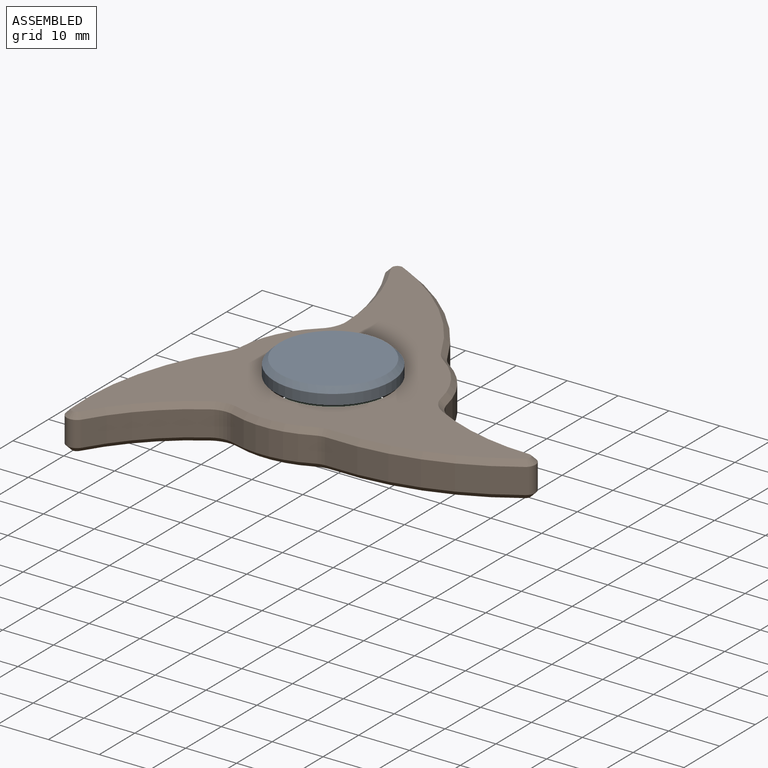
[diagram: assembled view]
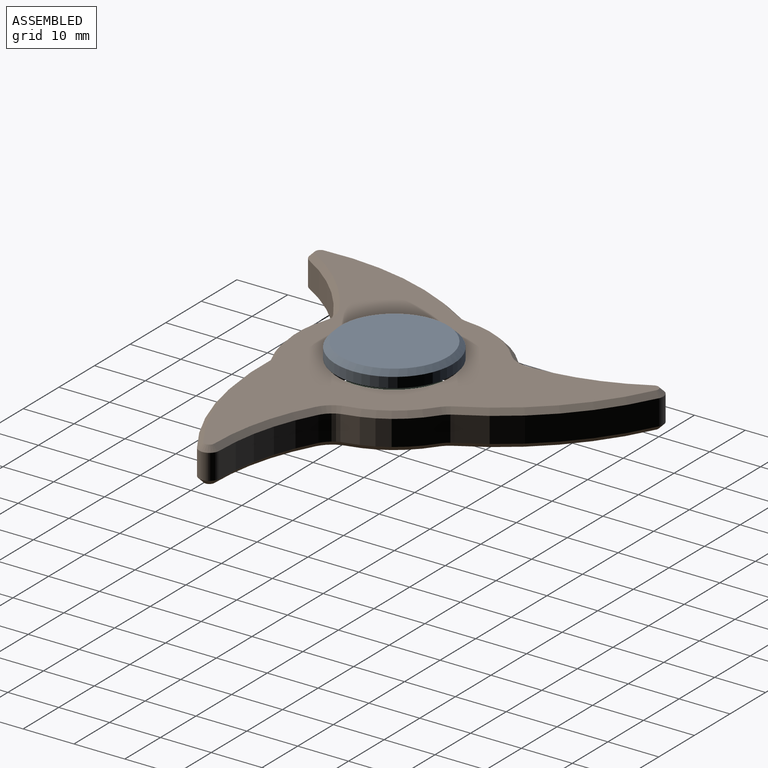
[diagram: assembled view, second angle]
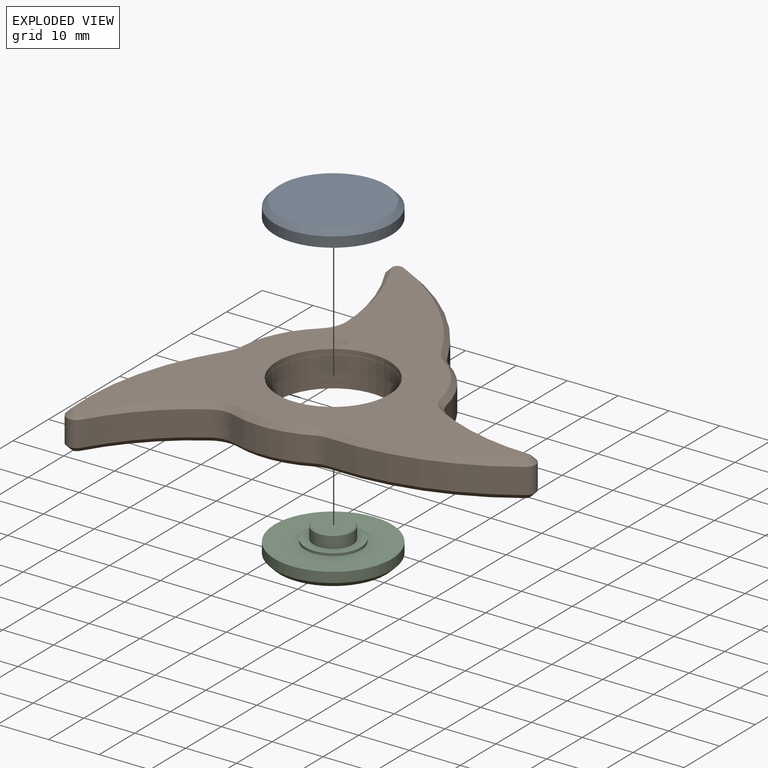
[diagram: exploded view]
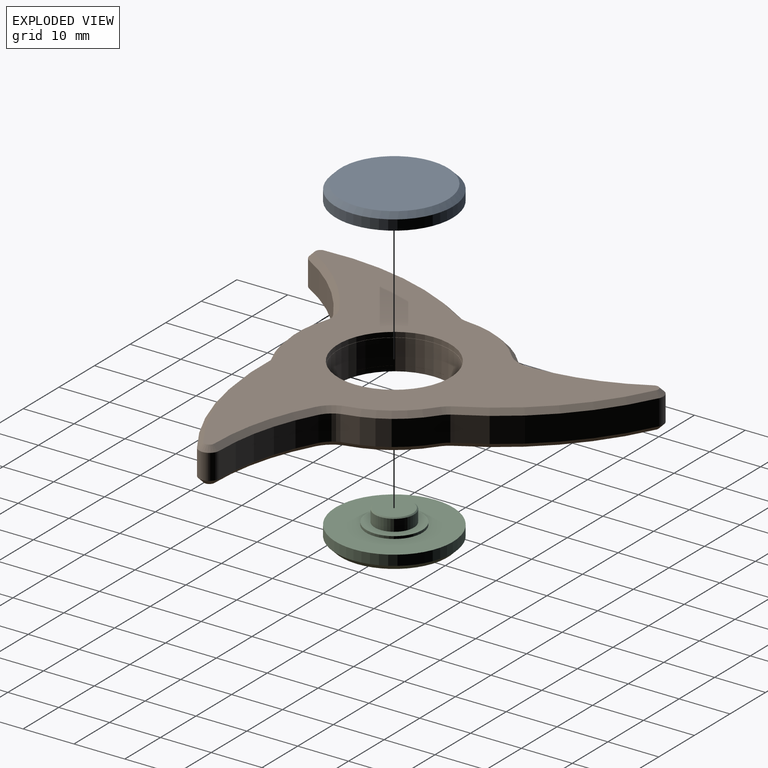
[diagram: exploded view, second angle]
ASSEMBLY  parts=3 mates=2
PART A: 9 faces, bbox 23x23x6 mm
  f0: cylinder r=11.5mm len=23mm, axis (0,0,-1), area 144.5mm2, adj f1,f7
  f1: plane 23x23mm, normal (0,0,1), area 320.4mm2, adj f0,f3
  f2: plane 21x21mm, normal (0,0,-1), area 346.4mm2, adj f7
  f3: cylinder r=5.5mm len=11mm, axis (0,0,-1), area 17.3mm2, adj f1,f4
  f4: plane 11x11mm, normal (0,0,1), area 48.5mm2, adj f3,f6
  f5: plane 7.3x7.3mm, normal (0,0,1), area 41.9mm2, adj f8
  f6: cylinder r=3.85mm len=7.7mm, axis (0,0,-1), area 55.6mm2, adj f4,f8
  f7: cone r=11.5mm half-angle=45deg, axis (0,0,1), area 97.7mm2, adj f0,f2
  f8: cone r=3.65mm half-angle=45deg, axis (0,0,-1), area 6.7mm2, adj f5,f6
PART B: 61 faces, bbox 73.6x77.5x7 mm
  f0: cylinder r=20mm len=12.63mm, axis (0,0,-1), area 77.9mm2, adj f15,f16,f33,f51
  f1: cylinder r=20mm len=13.62mm, axis (0,0,-1), area 77.9mm2, adj f14,f17,f21,f39
  f2: cylinder r=20mm len=15.16mm, axis (0,0,-1), area 77.9mm2, adj f18,f19,f30,f48
  f3: plane 75.52x71.59mm, normal (0,0,1), area 1580.5mm2, adj f38,f39,f40,f41,f42,f43,f44,f45
  f4: plane 75.52x71.59mm, normal (0,0,-1), area 1580.5mm2, adj f20,f21,f22,f23,f24,f25,f26,f27
  f5: cylinder r=52.48mm len=32.35mm, axis (0,0,-1), area 171.1mm2, adj f11,f19,f34,f52
  f6: cylinder r=42.82mm len=20.33mm, axis (0,0,-1), area 106mm2, adj f11,f16,f37,f55
  f7: cylinder r=42.82mm len=15.01mm, axis (0,0,-1), area 106mm2, adj f12,f18,f26,f44
  f8: cylinder r=52.48mm len=32.59mm, axis (0,0,-1), area 171.1mm2, adj f12,f17,f22,f40
  f9: cylinder r=42.82mm len=20.22mm, axis (0,0,-1), area 106mm2, adj f13,f14,f25,f43
  f10: cylinder r=52.48mm len=24.11mm, axis (0,0,-1), area 171.1mm2, adj f13,f15,f29,f47
  f11: cylinder r=2mm len=5mm, axis (0,0,1), area 25.4mm2, adj f5,f6,f36,f54
  f12: cylinder r=2mm len=5mm, axis (0,0,1), area 25.4mm2, adj f7,f8,f24,f42
  f13: cylinder r=2mm len=5mm, axis (0,0,1), area 25.4mm2, adj f9,f10,f27,f45
  f14: cylinder r=5mm len=5mm, axis (0,0,-1), area 21.8mm2, adj f1,f9,f23,f41
  f15: cylinder r=5mm len=5mm, axis (0,0,1), area 12.6mm2, adj f0,f10,f31,f49
  f16: cylinder r=5mm len=5mm, axis (0,0,-1), area 21.8mm2, adj f0,f6,f35,f53
  f17: cylinder r=5mm len=5mm, axis (0,0,1), area 12.6mm2, adj f1,f8,f20,f38
  f18: cylinder r=5mm len=5mm, axis (0,0,-1), area 21.8mm2, adj f2,f7,f28,f46
  f19: cylinder r=5mm len=5mm, axis (0,0,1), area 12.6mm2, adj f2,f5,f32,f50
  f20: cone r=6mm half-angle=45deg, axis (0,0,-1), area 3.9mm2, adj f4,f17,f21,f22
  f21: cone r=20mm half-angle=45deg, axis (0,0,1), area 21.5mm2, adj f1,f4,f20,f23
  f22: cone r=52.48mm half-angle=45deg, axis (0,0,1), area 47.9mm2, adj f4,f8,f20,f24
  f23: cone r=6mm half-angle=45deg, axis (0,0,-1), area 6.8mm2, adj f4,f14,f21,f25
  f24: cone r=1mm half-angle=45deg, axis (0,0,1), area 5.4mm2, adj f4,f12,f22,f26
  f25: cone r=43.82mm half-angle=45deg, axis (0,0,-1), area 30.3mm2, adj f4,f9,f23,f27
  f26: cone r=43.82mm half-angle=45deg, axis (0,0,-1), area 30.3mm2, adj f4,f7,f24,f28
  f27: cone r=1mm half-angle=45deg, axis (0,0,1), area 5.4mm2, adj f4,f13,f25,f29
  f28: cone r=6mm half-angle=45deg, axis (0,0,-1), area 6.8mm2, adj f4,f18,f26,f30
  f29: cone r=52.48mm half-angle=45deg, axis (0,0,1), area 47.9mm2, adj f4,f10,f27,f31
  f30: cone r=20mm half-angle=45deg, axis (0,0,1), area 21.5mm2, adj f2,f4,f28,f32
  f31: cone r=6mm half-angle=45deg, axis (0,0,-1), area 3.9mm2, adj f4,f15,f29,f33
  f32: cone r=6mm half-angle=45deg, axis (0,0,-1), area 3.9mm2, adj f4,f19,f30,f34
  f33: cone r=20mm half-angle=45deg, axis (0,0,1), area 21.5mm2, adj f0,f4,f31,f35
  f34: cone r=52.48mm half-angle=45deg, axis (0,0,1), area 47.9mm2, adj f4,f5,f32,f36
  f35: cone r=6mm half-angle=45deg, axis (0,0,-1), area 6.8mm2, adj f4,f16,f33,f37
  f36: cone r=1mm half-angle=45deg, axis (0,0,1), area 5.4mm2, adj f4,f11,f34,f37
  f37: cone r=43.82mm half-angle=45deg, axis (0,0,-1), area 30.3mm2, adj f4,f6,f35,f36
  f38: cone r=6mm half-angle=45deg, axis (0,0,1), area 3.9mm2, adj f3,f17,f39,f40
  f39: cone r=19mm half-angle=45deg, axis (0,0,-1), area 21.5mm2, adj f1,f3,f38,f41
  f40: cone r=51.48mm half-angle=45deg, axis (0,0,-1), area 47.9mm2, adj f3,f8,f38,f42
  f41: cone r=6mm half-angle=45deg, axis (0,0,1), area 6.8mm2, adj f3,f14,f39,f43
  f42: cone r=1mm half-angle=45deg, axis (0,0,-1), area 5.4mm2, adj f3,f12,f40,f44
  f43: cone r=42.82mm half-angle=45deg, axis (0,0,1), area 30.3mm2, adj f3,f9,f41,f45
  f44: cone r=42.82mm half-angle=45deg, axis (0,0,1), area 30.3mm2, adj f3,f7,f42,f46
  f45: cone r=1mm half-angle=45deg, axis (0,0,-1), area 5.4mm2, adj f3,f13,f43,f47
  f46: cone r=6mm half-angle=45deg, axis (0,0,1), area 6.8mm2, adj f3,f18,f44,f48
  f47: cone r=51.48mm half-angle=45deg, axis (0,0,-1), area 47.9mm2, adj f3,f10,f45,f49
  f48: cone r=19mm half-angle=45deg, axis (0,0,-1), area 21.5mm2, adj f2,f3,f46,f50
  f49: cone r=6mm half-angle=45deg, axis (0,0,1), area 3.9mm2, adj f3,f15,f47,f51
  f50: cone r=6mm half-angle=45deg, axis (0,0,1), area 3.9mm2, adj f3,f19,f48,f52
  f51: cone r=19mm half-angle=45deg, axis (0,0,-1), area 21.5mm2, adj f0,f3,f49,f53
  f52: cone r=51.48mm half-angle=45deg, axis (0,0,-1), area 47.9mm2, adj f3,f5,f50,f54
  f53: cone r=6mm half-angle=45deg, axis (0,0,1), area 6.8mm2, adj f3,f16,f51,f55
  f54: cone r=1mm half-angle=45deg, axis (0,0,-1), area 5.4mm2, adj f3,f11,f52,f55
  f55: cone r=42.82mm half-angle=45deg, axis (0,0,1), area 30.3mm2, adj f3,f6,f53,f54
  f56: cylinder r=11.05mm len=22.1mm, axis (0,0,-1), area 67.7mm2, adj f3,f59
  f57: cone r=12.02mm half-angle=45deg, axis (0,0,-1), area 2.5mm2, adj f58,f60
  f58: cylinder r=11.03mm len=22.05mm, axis (0,0,-1), area 346.4mm2, adj f57,f59
  f59: cone r=11.03mm half-angle=45deg, axis (0,0,1), area 2.5mm2, adj f56,f58
  f60: cylinder r=11.05mm len=22.1mm, axis (0,0,-1), area 67.7mm2, adj f4,f57
PART C: same geometry as A
PLACE A rot(axis=(1,0,0),180deg) t=(0,0,10.5)mm
PLACE B at identity
PLACE C t=(0,0,-3.5)mm
MATE fastened A.f6 <-> C.f6  axis (0,0,-1) through (0,0,4.5)mm
MATE revolute C.f0 <-> B.f57  axis (0,0,1) through (0,0,-0.5)mm
